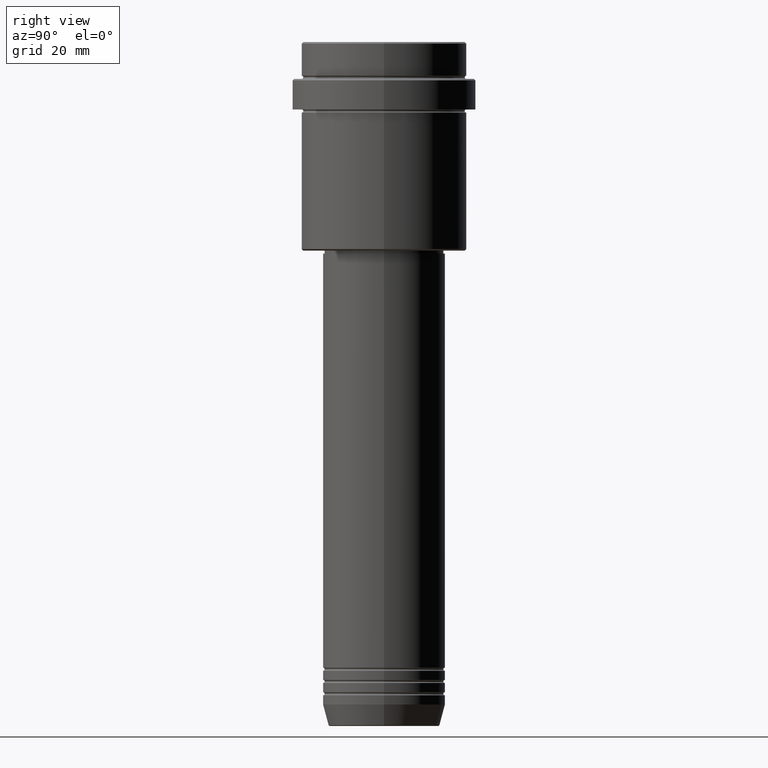
[diagram: clean part render]
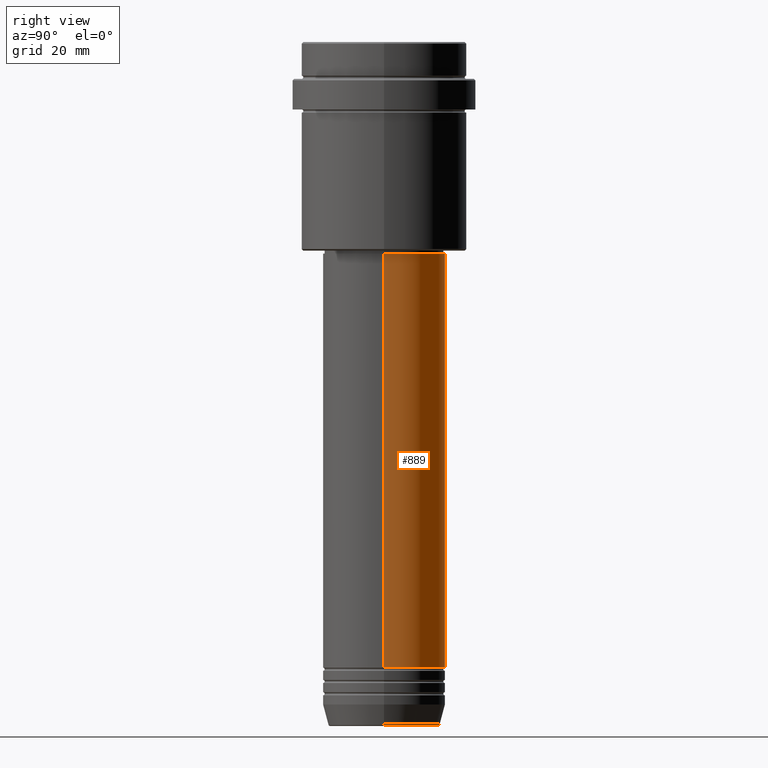
[diagram: same view with one face highlighted and labeled with its STEP entity id]
A machine part, right view. The second image highlights one B-rep face of the part: STEP entity #889.
In plain terms, the highlighted cylindrical surface (partial cylindrical patch) has radius 20 mm, axis along (-0, -0, 1).
Its self-contained STEP definition (entity closure, byte-faithful):
#11 = AXIS2_PLACEMENT_3D ( 'NONE', #1243, #490, #1258 ) ;
#16 = DIRECTION ( 'NONE',  ( 1.000000000000000000, 0.000000000000000000, 0.000000000000000000 ) ) ;
#28 = AXIS2_PLACEMENT_3D ( 'NONE', #652, #987, #16 ) ;
#44 = DIRECTION ( 'NONE',  ( -0.000000000000000000, -0.000000000000000000, 1.000000000000000000 ) ) ;
#45 = EDGE_LOOP ( 'NONE', ( #830, #180, #411, #1327 ) ) ;
#48 = VECTOR ( 'NONE', #44, 1000.000000000000000 ) ;
#144 = EDGE_CURVE ( 'NONE', #1244, #813, #379, .T. ) ;
#145 = CYLINDRICAL_SURFACE ( 'NONE', #590, 19.99999999999999645 ) ;
#180 = ORIENTED_EDGE ( 'NONE', *, *, #869, .T. ) ;
#245 = LINE ( 'NONE', #585, #48 ) ;
#283 = CARTESIAN_POINT ( 'NONE',  ( -20.00000000000000000, 2.449293598294706513E-15, -203.9999999999998579 ) ) ;
#293 = VERTEX_POINT ( 'NONE', #283 ) ;
#350 = VECTOR ( 'NONE', #907, 1000.000000000000000 ) ;
#357 = FACE_OUTER_BOUND ( 'NONE', #45, .T. ) ;
#379 = LINE ( 'NONE', #771, #350 ) ;
#411 = ORIENTED_EDGE ( 'NONE', *, *, #704, .F. ) ;
#459 = DIRECTION ( 'NONE',  ( 1.000000000000000000, 0.000000000000000000, 0.000000000000000000 ) ) ;
#490 = DIRECTION ( 'NONE',  ( -0.000000000000000000, -0.000000000000000000, 1.000000000000000000 ) ) ;
#585 = CARTESIAN_POINT ( 'NONE',  ( -19.99999999999999645, 2.449293598294706119E-15, 0.000000000000000000 ) ) ;
#590 = AXIS2_PLACEMENT_3D ( 'NONE', #1228, #675, #459 ) ;
#640 = CIRCLE ( 'NONE', #28, 20.00000000000000000 ) ;
#652 = CARTESIAN_POINT ( 'NONE',  ( 0.000000000000000000, 0.000000000000000000, -203.9999999999998579 ) ) ;
#675 = DIRECTION ( 'NONE',  ( -0.000000000000000000, -0.000000000000000000, 1.000000000000000000 ) ) ;
#678 = EDGE_CURVE ( 'NONE', #1244, #293, #640, .T. ) ;
#704 = EDGE_CURVE ( 'NONE', #813, #1366, #1351, .T. ) ;
#771 = CARTESIAN_POINT ( 'NONE',  ( 19.99999999999999645, 0.000000000000000000, 0.000000000000000000 ) ) ;
#813 = VERTEX_POINT ( 'NONE', #826 ) ;
#826 = CARTESIAN_POINT ( 'NONE',  ( 19.99999999999999645, 0.000000000000000000, -68.99999999999997158 ) ) ;
#830 = ORIENTED_EDGE ( 'NONE', *, *, #678, .T. ) ;
#869 = EDGE_CURVE ( 'NONE', #293, #1366, #245, .T. ) ;
#889 = ADVANCED_FACE ( 'NONE', ( #357 ), #145, .T. ) ;
#907 = DIRECTION ( 'NONE',  ( -0.000000000000000000, -0.000000000000000000, 1.000000000000000000 ) ) ;
#931 = CARTESIAN_POINT ( 'NONE',  ( -19.99999999999999645, 2.449293598294706119E-15, -68.99999999999997158 ) ) ;
#987 = DIRECTION ( 'NONE',  ( -0.000000000000000000, -0.000000000000000000, 1.000000000000000000 ) ) ;
#1069 = CARTESIAN_POINT ( 'NONE',  ( 20.00000000000000000, 0.000000000000000000, -203.9999999999998579 ) ) ;
#1228 = CARTESIAN_POINT ( 'NONE',  ( 0.000000000000000000, 0.000000000000000000, 0.000000000000000000 ) ) ;
#1243 = CARTESIAN_POINT ( 'NONE',  ( 0.000000000000000000, 0.000000000000000000, -68.99999999999997158 ) ) ;
#1244 = VERTEX_POINT ( 'NONE', #1069 ) ;
#1258 = DIRECTION ( 'NONE',  ( 1.000000000000000000, 0.000000000000000000, 0.000000000000000000 ) ) ;
#1327 = ORIENTED_EDGE ( 'NONE', *, *, #144, .F. ) ;
#1351 = CIRCLE ( 'NONE', #11, 19.99999999999999645 ) ;
#1366 = VERTEX_POINT ( 'NONE', #931 ) ;